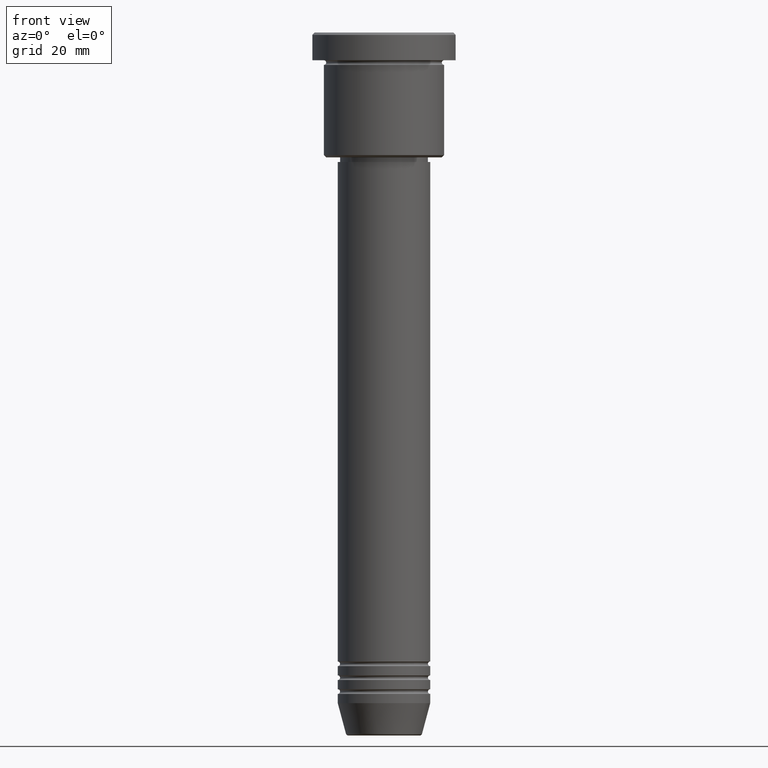
[diagram: clean part render]
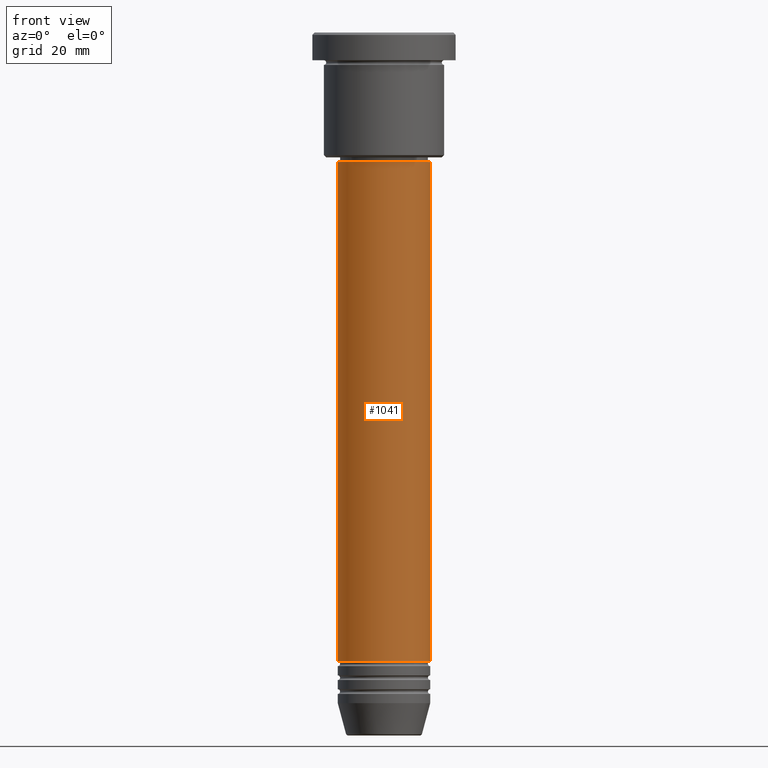
[diagram: same view with one face highlighted and labeled with its STEP entity id]
A machine part, front view. The second image highlights one B-rep face of the part: STEP entity #1041.
In plain terms, the highlighted cylindrical surface (partial cylindrical patch) has radius 10 mm, axis along (-0, -0, 1).
Its self-contained STEP definition (entity closure, byte-faithful):
#59 = CARTESIAN_POINT ( 'NONE',  ( 10.00000000000000000, 0.000000000000000000, 0.000000000000000000 ) ) ;
#104 = ORIENTED_EDGE ( 'NONE', *, *, #478, .F. ) ;
#188 = ORIENTED_EDGE ( 'NONE', *, *, #432, .T. ) ;
#242 = CARTESIAN_POINT ( 'NONE',  ( -10.00000000000000000, 1.224646799147353256E-15, -27.99999999999998934 ) ) ;
#248 = EDGE_LOOP ( 'NONE', ( #104, #283, #188, #546 ) ) ;
#283 = ORIENTED_EDGE ( 'NONE', *, *, #630, .T. ) ;
#312 = CYLINDRICAL_SURFACE ( 'NONE', #866, 10.00000000000000000 ) ;
#381 = CARTESIAN_POINT ( 'NONE',  ( 10.00000000000000000, 0.000000000000000000, -135.9999999999999432 ) ) ;
#411 = DIRECTION ( 'NONE',  ( -0.000000000000000000, -0.000000000000000000, 1.000000000000000000 ) ) ;
#430 = CARTESIAN_POINT ( 'NONE',  ( 0.000000000000000000, 0.000000000000000000, -135.9999999999999432 ) ) ;
#432 = EDGE_CURVE ( 'NONE', #590, #1144, #693, .T. ) ;
#456 = AXIS2_PLACEMENT_3D ( 'NONE', #509, #628, #808 ) ;
#478 = EDGE_CURVE ( 'NONE', #695, #570, #612, .T. ) ;
#509 = CARTESIAN_POINT ( 'NONE',  ( 0.000000000000000000, 0.000000000000000000, -27.99999999999998934 ) ) ;
#525 = EDGE_CURVE ( 'NONE', #570, #1144, #594, .T. ) ;
#526 = DIRECTION ( 'NONE',  ( 1.000000000000000000, 0.000000000000000000, 0.000000000000000000 ) ) ;
#546 = ORIENTED_EDGE ( 'NONE', *, *, #525, .F. ) ;
#570 = VERTEX_POINT ( 'NONE', #242 ) ;
#590 = VERTEX_POINT ( 'NONE', #381 ) ;
#594 = CIRCLE ( 'NONE', #456, 10.00000000000000000 ) ;
#601 = FACE_OUTER_BOUND ( 'NONE', #248, .T. ) ;
#612 = LINE ( 'NONE', #819, #1108 ) ;
#628 = DIRECTION ( 'NONE',  ( -0.000000000000000000, -0.000000000000000000, 1.000000000000000000 ) ) ;
#630 = EDGE_CURVE ( 'NONE', #695, #590, #1178, .T. ) ;
#637 = AXIS2_PLACEMENT_3D ( 'NONE', #430, #411, #801 ) ;
#693 = LINE ( 'NONE', #59, #1123 ) ;
#695 = VERTEX_POINT ( 'NONE', #781 ) ;
#781 = CARTESIAN_POINT ( 'NONE',  ( -10.00000000000000000, 1.224646799147353256E-15, -135.9999999999999432 ) ) ;
#786 = CARTESIAN_POINT ( 'NONE',  ( 0.000000000000000000, 0.000000000000000000, 0.000000000000000000 ) ) ;
#795 = DIRECTION ( 'NONE',  ( -0.000000000000000000, -0.000000000000000000, 1.000000000000000000 ) ) ;
#801 = DIRECTION ( 'NONE',  ( 1.000000000000000000, 0.000000000000000000, 0.000000000000000000 ) ) ;
#808 = DIRECTION ( 'NONE',  ( 1.000000000000000000, 0.000000000000000000, 0.000000000000000000 ) ) ;
#819 = CARTESIAN_POINT ( 'NONE',  ( -10.00000000000000000, 1.224646799147353256E-15, 0.000000000000000000 ) ) ;
#866 = AXIS2_PLACEMENT_3D ( 'NONE', #786, #1142, #526 ) ;
#982 = DIRECTION ( 'NONE',  ( -0.000000000000000000, -0.000000000000000000, 1.000000000000000000 ) ) ;
#1028 = CARTESIAN_POINT ( 'NONE',  ( 10.00000000000000000, 0.000000000000000000, -27.99999999999998934 ) ) ;
#1041 = ADVANCED_FACE ( 'NONE', ( #601 ), #312, .T. ) ;
#1108 = VECTOR ( 'NONE', #982, 1000.000000000000000 ) ;
#1123 = VECTOR ( 'NONE', #795, 1000.000000000000000 ) ;
#1142 = DIRECTION ( 'NONE',  ( -0.000000000000000000, -0.000000000000000000, 1.000000000000000000 ) ) ;
#1144 = VERTEX_POINT ( 'NONE', #1028 ) ;
#1178 = CIRCLE ( 'NONE', #637, 10.00000000000000000 ) ;